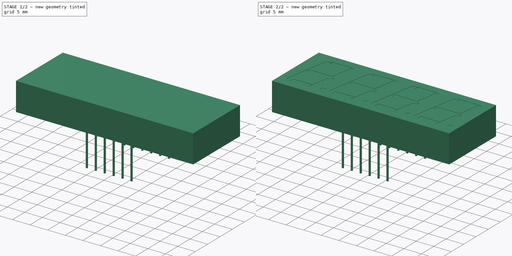
[diagram: build sequence overview — one tinted view per stage of 2, left to right]
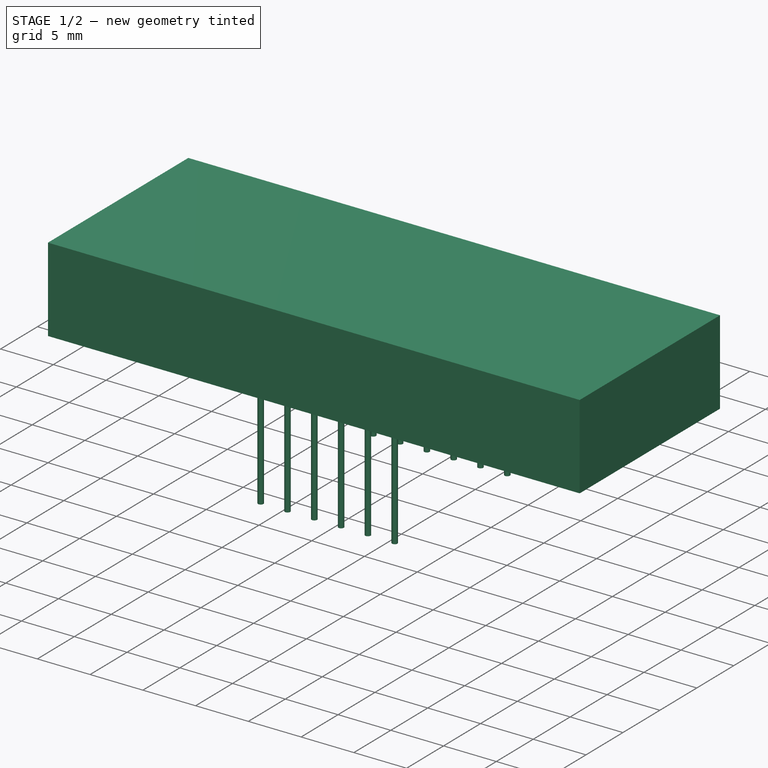
[diagram: stage 1 of 2 — iso view after this stage's code; geometry added in this stage tinted green]
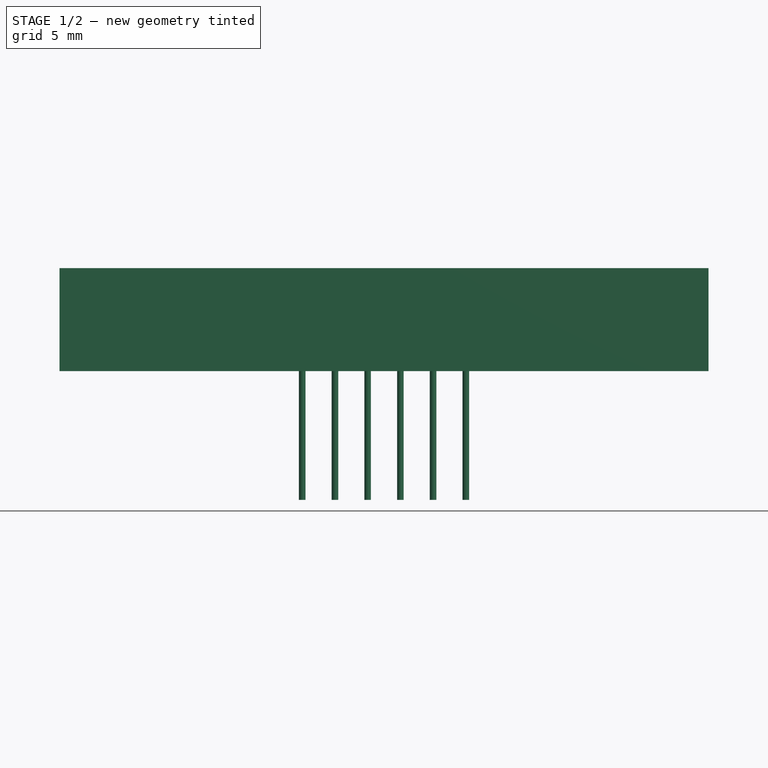
[diagram: stage 1 of 2 — front view after this stage's code; geometry added in this stage tinted green]
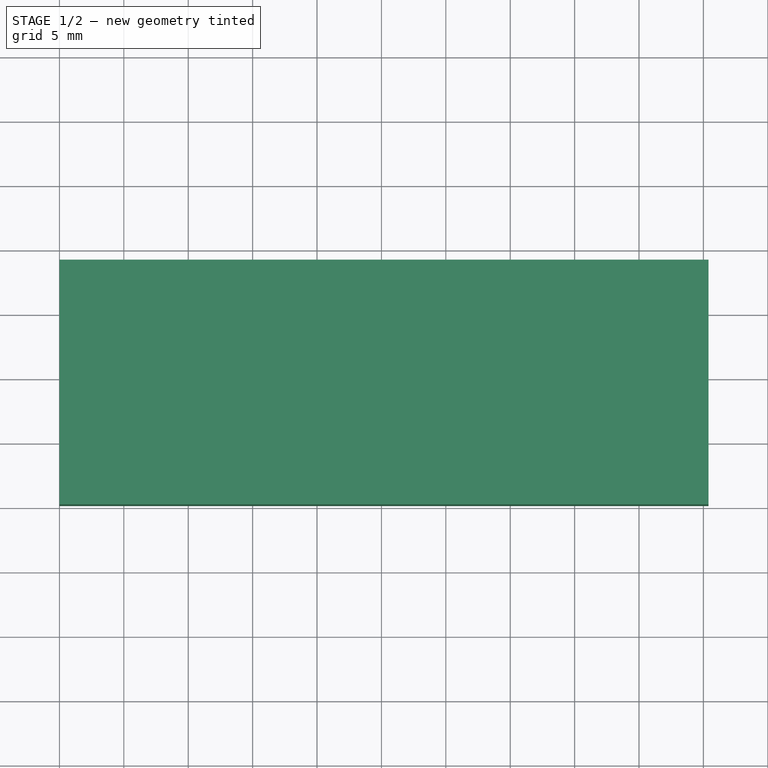
[diagram: stage 1 of 2 — top view after this stage's code; geometry added in this stage tinted green]
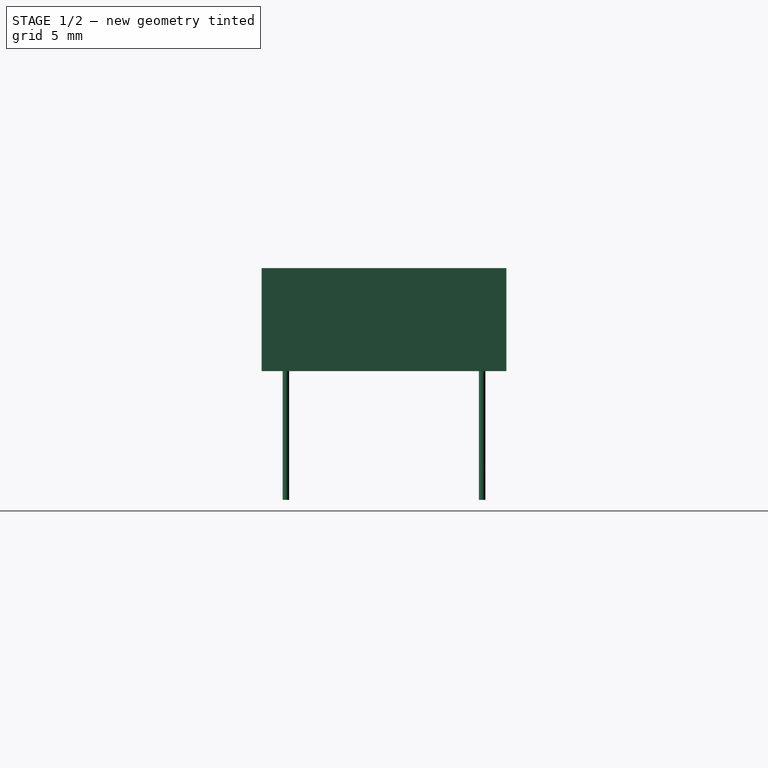
[diagram: stage 1 of 2 — right view after this stage's code; geometry added in this stage tinted green]
FCSTD DOCUMENT  (FreeCAD 0.19R24291 (Git))
Label: 4-digit-7segment-display
License: All rights reserved
LicenseURL: http://en.wikipedia.org/wiki/All_rights_reserved
objects: Sketcher::SketchObject×3, PartDesign::Pad×2, PartDesign::Pocket×1, PartDesign::Body×1, Part::Refine×1
note: 11 computed .brp shape members not serialized (recipe doc carries the construction recipe); baked Part::Feature solids carry a one-line shape summary decoded from their .brp

FEATURE [Sketcher::SketchObject] Sketch
  FullyConstrained = true
  MapMode = 5
  Support = -> [XY_Plane]
  sketch-geometry (4):
    g0: LineSegment StartX=0 StartY=0 StartZ=0 EndX=50.4 EndY=0 EndZ=0
    g1: LineSegment StartX=50.4 StartY=0 StartZ=0 EndX=50.4 EndY=19 EndZ=0
    g2: LineSegment StartX=50.4 StartY=19 StartZ=0 EndX=0 EndY=19 EndZ=0
    g3: LineSegment StartX=0 StartY=19 StartZ=0 EndX=0 EndY=0 EndZ=0
  constraints (11):
    c: Coincident(g0,g1)
    c: Coincident(g1,g2)
    c: Coincident(g2,g3)
    c: Coincident(g3,g0)
    c: Horizontal(g0)
    c: Horizontal(g2)
    c: Vertical(g1)
    c: Vertical(g3)
    c: Coincident(g0,g-1)
    c: DistanceY(g3,g3) = 19
    c: DistanceX(g0,g0) = 50.4
FEATURE [PartDesign::Pad] Pad
  Direction = (1,1,1)
  Length = 8
  Length2 = 100
  Profile = -> Sketch
  Type = 0
FEATURE [Sketcher::SketchObject] Sketch001
  ExternalGeometry = -> [Pad]
  FullyConstrained = true
  MapMode = 5
  Placement = pos=(0,0,0) rot=(1,0,0;3.14159rad)
  Support = -> [Pad]
  sketch-geometry (26):
    g0: Circle CenterX=18.85 CenterY=-1.88 CenterZ=0 NormalX=0 NormalY=0 NormalZ=1 AngleXU=0 Radius=0.255
    g1: Circle CenterX=21.39 CenterY=-1.88 CenterZ=0 NormalX=0 NormalY=0 NormalZ=1 AngleXU=0 Radius=0.255
    g2: LineSegment StartX=18.85 StartY=-1.88 StartZ=0 EndX=21.39 EndY=-1.88 EndZ=0
    g3: Circle CenterX=23.93 CenterY=-1.88 CenterZ=0 NormalX=0 NormalY=0 NormalZ=1 AngleXU=0 Radius=0.255
    g4: LineSegment StartX=21.39 StartY=-1.88 StartZ=0 EndX=23.93 EndY=-1.88 EndZ=0
    g5: Circle CenterX=26.47 CenterY=-1.88 CenterZ=0 NormalX=0 NormalY=0 NormalZ=1 AngleXU=0 Radius=0.255
    g6: LineSegment StartX=23.93 StartY=-1.88 StartZ=0 EndX=26.47 EndY=-1.88 EndZ=0
    g7: Circle CenterX=29.01 CenterY=-1.88 CenterZ=0 NormalX=0 NormalY=0 NormalZ=1 AngleXU=0 Radius=0.255
    g8: LineSegment StartX=26.47 StartY=-1.88 StartZ=0 EndX=29.01 EndY=-1.88 EndZ=0
    g9: Circle CenterX=31.55 CenterY=-1.88 CenterZ=0 NormalX=0 NormalY=0 NormalZ=1 AngleXU=0 Radius=0.255
    g10: LineSegment StartX=29.01 StartY=-1.88 StartZ=0 EndX=31.55 EndY=-1.88 EndZ=0
    g11: Circle CenterX=18.85 CenterY=-17.12 CenterZ=0 NormalX=0 NormalY=0 NormalZ=1 AngleXU=0 Radius=0.255
    g12: LineSegment StartX=18.85 StartY=-1.88 StartZ=0 EndX=18.85 EndY=-17.12 EndZ=0
    g13: Circle CenterX=21.39 CenterY=-17.12 CenterZ=0 NormalX=0 NormalY=0 NormalZ=1 AngleXU=0 Radius=0.255
    g14: LineSegment StartX=18.85 StartY=-17.12 StartZ=0 EndX=21.39 EndY=-17.12 EndZ=0
    g15: Circle CenterX=23.93 CenterY=-17.12 CenterZ=0 NormalX=0 NormalY=0 NormalZ=1 AngleXU=0 Radius=0.255
    g16: LineSegment StartX=21.39 StartY=-17.12 StartZ=0 EndX=23.93 EndY=-17.12 EndZ=0
    g17: Circle CenterX=26.47 CenterY=-17.12 CenterZ=0 NormalX=0 NormalY=0 NormalZ=1 AngleXU=0 Radius=0.255
    g18: LineSegment StartX=23.93 StartY=-17.12 StartZ=0 EndX=26.47 EndY=-17.12 EndZ=0
    g19: Circle CenterX=29.01 CenterY=-17.12 CenterZ=0 NormalX=0 NormalY=0 NormalZ=1 AngleXU=0 Radius=0.255
    g20: LineSegment StartX=26.47 StartY=-17.12 StartZ=0 EndX=29.01 EndY=-17.12 EndZ=0
    g21: Circle CenterX=31.55 CenterY=-17.12 CenterZ=0 NormalX=0 NormalY=0 NormalZ=1 AngleXU=0 Radius=0.255
    g22: LineSegment StartX=29.01 StartY=-17.12 StartZ=0 EndX=31.55 EndY=-17.12 EndZ=0
    g23: LineSegment StartX=18.85 StartY=-17.12 StartZ=0 EndX=31.55 EndY=-1.88 EndZ=0
    g24: GeomPoint X=25.2 Y=-9.5 Z=0
    g25: LineSegment StartX=0 StartY=0 StartZ=0 EndX=50.4 EndY=-19 EndZ=0
  constraints (62):
    c: Coincident(g0,g2)
    c: Coincident(g1,g2)
    c: Distance(g2) = 2.54
    c: Coincident(g1,g4)
    c: Coincident(g3,g4)
    c: Equal(g2,g4)
    c: Parallel(g4,g2)
    c: Coincident(g3,g6)
    c: Coincident(g5,g6)
    c: Equal(g2,g6)
    c: Parallel(g6,g2)
    c: Coincident(g5,g8)
    c: Coincident(g7,g8)
    c: Equal(g2,g8)
    c: Parallel(g8,g2)
    c: Coincident(g7,g10)
    c: Coincident(g9,g10)
    c: Equal(g2,g10)
    c: Parallel(g10,g2)
    c: Coincident(g0,g12)
    c: Coincident(g11,g12)
    c: Perpendicular(g12,g2)
    c: Coincident(g11,g14)
    c: Coincident(g13,g14)
    c: Equal(g2,g14)
    c: Parallel(g14,g2)
    c: Coincident(g13,g16)
    c: Coincident(g15,g16)
    c: Equal(g2,g16)
    c: Parallel(g16,g2)
    c: Coincident(g15,g18)
    c: Coincident(g17,g18)
    c: Equal(g2,g18)
    c: Parallel(g18,g2)
    c: Coincident(g17,g20)
    c: Coincident(g19,g20)
    c: Equal(g2,g20)
    c: Parallel(g20,g2)
    c: Coincident(g19,g22)
    c: Coincident(g21,g22)
    c: Equal(g2,g22)
    c: Parallel(g22,g2)
    c: Horizontal(g22)
    c: Coincident(g23,g11)
    c: Coincident(g23,g9)
    c: Symmetric(g23,g23,g24)
    c: Coincident(g25,g-1)
    c: Coincident(g25,g-3)
    c: Symmetric(g25,g25,g24)
    c: DistanceY(g12,g12) = 15.24
    c: Equal(g21,g19)
    c: Equal(g19,g17)
    c: Equal(g17,g15)
    c: Equal(g15,g13)
    c: Equal(g13,g11)
    c: Equal(g11,g9)
    c: Equal(g9,g7)
    c: Equal(g7,g5)
    c: Equal(g5,g3)
    c: Equal(g3,g1)
    c: Equal(g1,g0)
    c: Diameter(g21) = 0.51
FEATURE [PartDesign::Pad] Pad001
  BaseFeature = -> Pad
  Direction = (1,1,1)
  Length = 10
  Length2 = 100
  Profile = -> Sketch001
  Type = 0
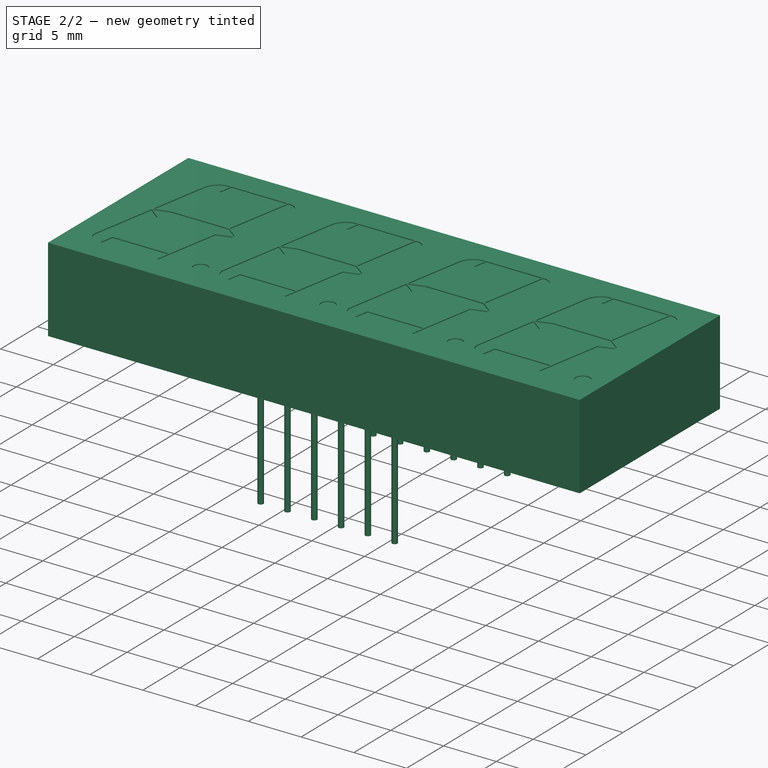
[diagram: stage 2 of 2 — iso view after this stage's code; geometry added in this stage tinted green]
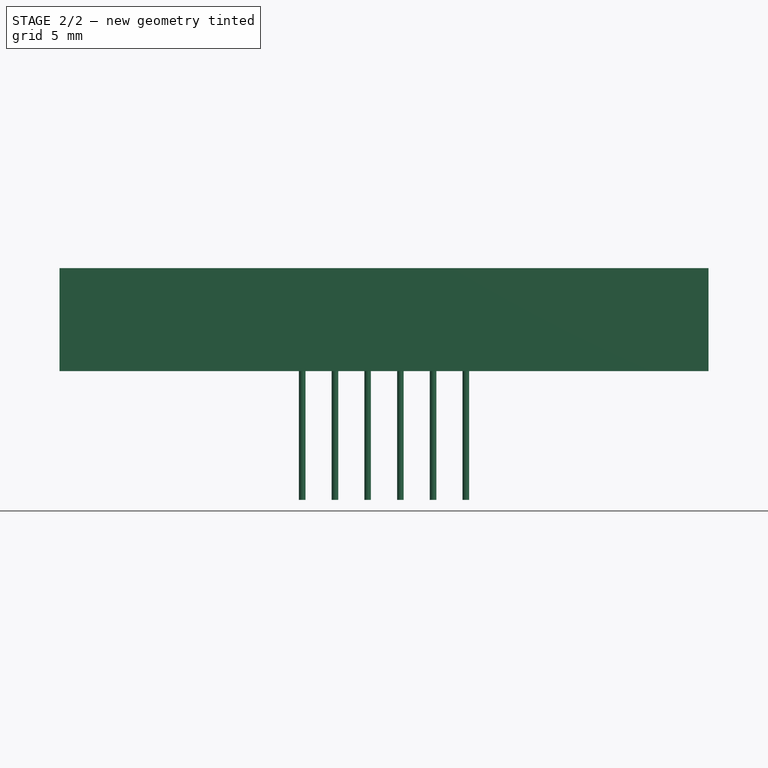
[diagram: stage 2 of 2 — front view after this stage's code; geometry added in this stage tinted green]
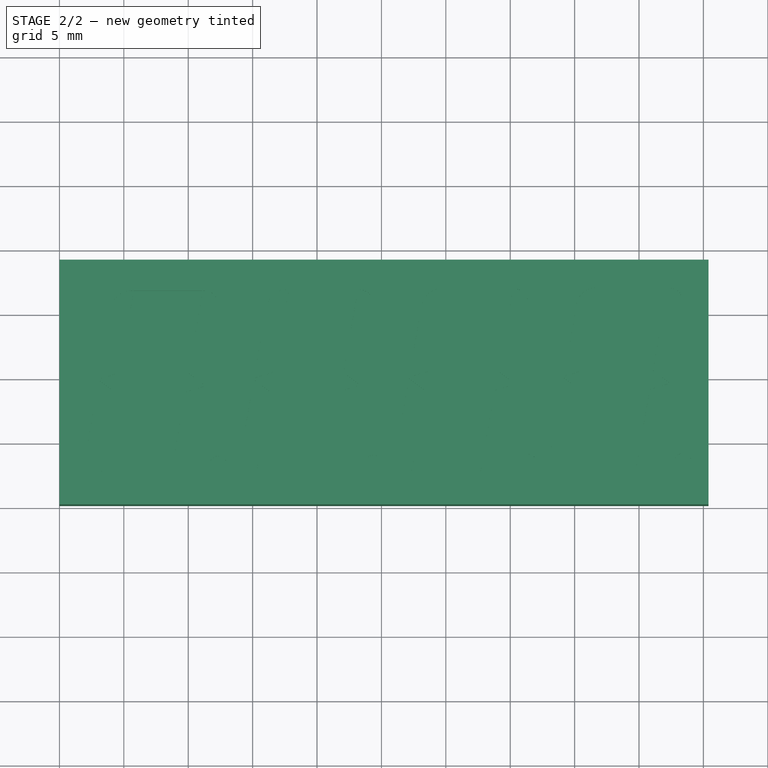
[diagram: stage 2 of 2 — top view after this stage's code; geometry added in this stage tinted green]
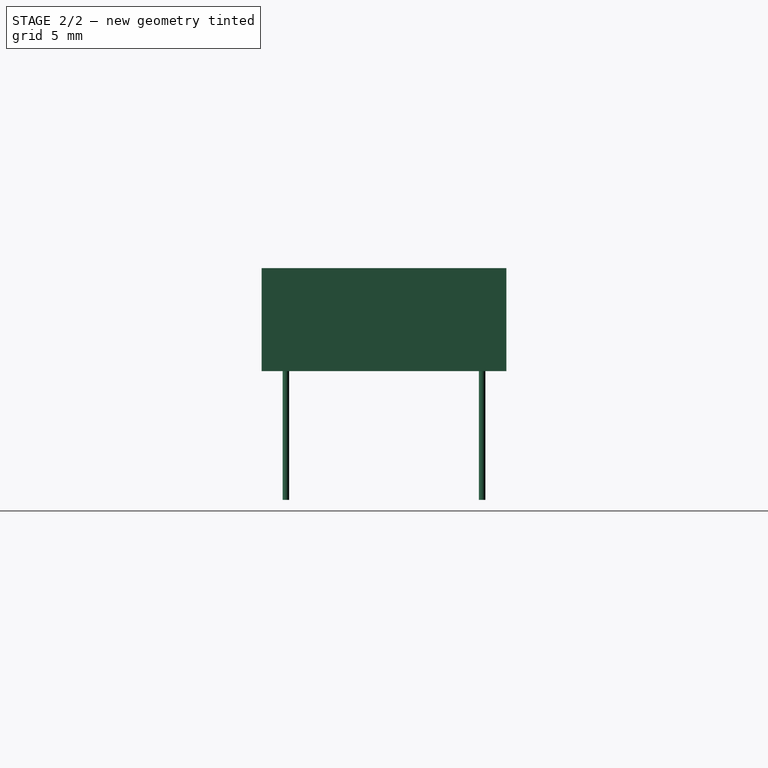
[diagram: stage 2 of 2 — right view after this stage's code; geometry added in this stage tinted green]
FEATURE [Sketcher::SketchObject] Sketch002
  ExternalGeometry = -> [Pad001]
  FullyConstrained = true
  MapMode = 5
  Placement = pos=(0,0,8) rot=(0,0,1;0rad)
  Support = -> [Pad001]
  expr: Constraints[248] = 12.7 - 1.35 / 2
  expr: Constraints[112] = (19 - 14.2) / 2
  sketch-geometry (190):
    g0: LineSegment StartX=3.11113 StartY=9.84487 StartZ=0 EndX=4.55965 EndY=10.2854 EndZ=0
    g1: LineSegment StartX=4.55965 StartY=10.2854 StartZ=0 EndX=5.67307 EndY=16.6 EndZ=0
    g2: LineSegment StartX=5.67307 StartY=16.6 StartZ=0 EndX=5.57307 EndY=16.6 EndZ=0
    g3: LineSegment StartX=4.08157 StartY=15.3485 StartZ=0 EndX=3.11113 EndY=9.84487 EndZ=0
    g4: LineSegment StartX=5.77461 StartY=16.6 StartZ=0 EndX=5.53657 EndY=15.25 EndZ=0
    g5: LineSegment StartX=5.53657 StartY=15.25 StartZ=0 EndX=10.8168 EndY=15.25 EndZ=0
    g6: LineSegment StartX=10.8168 StartY=15.25 StartZ=0 EndX=11.0548 EndY=16.6 EndZ=0
    g7: LineSegment StartX=11.0548 StartY=16.6 StartZ=0 EndX=5.77461 EndY=16.6 EndZ=0
    g8: LineSegment StartX=11.1564 StartY=16.6 StartZ=0 EndX=11.2564 EndY=16.6 EndZ=0
    g9: LineSegment StartX=12.3065 StartY=15.3485 StartZ=0 EndX=11.2534 EndY=9.37602 EndZ=0
    g10: LineSegment StartX=11.2534 StartY=9.37602 StartZ=0 EndX=10.0429 EndY=10.2854 EndZ=0
    g11: LineSegment StartX=10.0429 StartY=10.2854 StartZ=0 EndX=11.1564 EndY=16.6 EndZ=0
    g12: LineSegment StartX=3.09166 StartY=9.73443 StartZ=0 EndX=4.54017 EndY=10.175 EndZ=0
    g13: LineSegment StartX=4.54017 StartY=10.175 StartZ=0 EndX=10.0235 EndY=10.175 EndZ=0
    g14: LineSegment StartX=10.0235 StartY=10.175 StartZ=0 EndX=11.2339 EndY=9.26557 EndZ=0
    g15: LineSegment StartX=11.2339 StartY=9.26557 StartZ=0 EndX=9.78543 EndY=8.825 EndZ=0
    g16: LineSegment StartX=9.78543 StartY=8.825 StartZ=0 EndX=4.30213 EndY=8.825 EndZ=0
    g17: LineSegment StartX=4.30213 StartY=8.825 StartZ=0 EndX=3.09166 EndY=9.73443 EndZ=0
    g18: LineSegment StartX=3.07218 StartY=9.62398 StartZ=0 EndX=4.28265 EndY=8.71455 EndZ=0
    g19: LineSegment StartX=4.28265 StartY=8.71455 StartZ=0 EndX=3.16923 EndY=2.4 EndZ=0
    g20: LineSegment StartX=3.16923 StartY=2.4 StartZ=0 EndX=3.06923 EndY=2.4 EndZ=0
    g21: LineSegment StartX=2.01908 StartY=3.65152 StartZ=0 EndX=3.07218 EndY=9.62398 EndZ=0
    g22: LineSegment StartX=11.2145 StartY=9.15513 StartZ=0 EndX=9.76596 EndY=8.71455 EndZ=0
    g23: LineSegment StartX=9.76596 StartY=8.71455 StartZ=0 EndX=8.65253 EndY=2.4 EndZ=0
    g24: LineSegment StartX=8.65253 StartY=2.4 StartZ=0 EndX=8.75253 EndY=2.4 EndZ=0
    g25: LineSegment StartX=10.244 StartY=3.65152 StartZ=0 EndX=11.2145 EndY=9.15513 EndZ=0
    g26: LineSegment StartX=3.27077 StartY=2.4 StartZ=0 EndX=8.55099 EndY=2.4 EndZ=0
    g27: LineSegment StartX=8.55099 StartY=2.4 StartZ=0 EndX=8.78903 EndY=3.75 EndZ=0
    g28: LineSegment StartX=8.78903 StartY=3.75 StartZ=0 EndX=3.50881 EndY=3.75 EndZ=0
    g29: LineSegment StartX=3.50881 StartY=3.75 StartZ=0 EndX=3.27077 EndY=2.4 EndZ=0
    g30: ArcOfCircle CenterX=5.57307 CenterY=15.0855 CenterZ=0 NormalX=0 NormalY=0 NormalZ=1 AngleXU=0 Radius=1.51451 StartAngle=1.5708 EndAngle=2.96706
    g31: ArcOfCircle CenterX=11.2564 CenterY=15.5337 CenterZ=0 NormalX=0 NormalY=0 NormalZ=1 AngleXU=0 Radius=1.06635 StartAngle=6.10865 EndAngle=7.85398
    g32: ArcOfCircle CenterX=3.06923 CenterY=3.46635 CenterZ=0 NormalX=0 NormalY=0 NormalZ=1 AngleXU=0 Radius=1.06635 StartAngle=2.96706 EndAngle=4.71239
    g33: ArcOfCircle CenterX=8.75253 CenterY=3.91451 CenterZ=0 NormalX=0 NormalY=0 NormalZ=1 AngleXU=0 Radius=1.51451 StartAngle=4.71239 EndAngle=6.10865
    g34: Circle CenterX=12.3227 CenterY=3.075 CenterZ=0 NormalX=0 NormalY=0 NormalZ=1 AngleXU=0 Radius=0.675
    g35: LineSegment StartX=11.2534 StartY=9.37602 StartZ=0 EndX=11.2145 EndY=9.15513 EndZ=0
    g36: LineSegment StartX=3.11113 StartY=9.84487 StartZ=0 EndX=3.07218 EndY=9.62398 EndZ=0
    g37: LineSegment StartX=8.55099 StartY=2.4 StartZ=0 EndX=8.65253 EndY=2.4 EndZ=0
    g38: LineSegment StartX=3.16923 StartY=2.4 StartZ=0 EndX=3.27077 EndY=2.4 EndZ=0
    g39: LineSegment StartX=4.28265 StartY=8.71455 StartZ=0 EndX=4.30213 EndY=8.825 EndZ=0
    g40: LineSegment StartX=10.0429 StartY=10.2854 StartZ=0 EndX=10.0235 EndY=10.175 EndZ=0
    g41: LineSegment StartX=9.76596 StartY=8.71455 StartZ=0 EndX=9.78543 EndY=8.825 EndZ=0
    g42: LineSegment StartX=4.54017 StartY=10.175 StartZ=0 EndX=4.55965 EndY=10.2854 EndZ=0
    g43: LineSegment StartX=8.55099 StartY=3.75 StartZ=0 EndX=8.55099 EndY=2.4 EndZ=0
    g44: LineSegment StartX=8.55099 StartY=3.075 StartZ=0 EndX=12.3227 EndY=3.075 EndZ=0
    g45: LineSegment StartX=12.3227 StartY=3.075 StartZ=0 EndX=12.3227 EndY=15.5337 EndZ=0
    g46: LineSegment StartX=15.1359 StartY=9.91443 StartZ=0 EndX=16.5844 EndY=10.355 EndZ=0
    g47: LineSegment StartX=16.5844 StartY=10.355 StartZ=0 EndX=17.6979 EndY=16.6696 EndZ=0
    g48: LineSegment StartX=17.6979 StartY=16.6696 StartZ=0 EndX=17.5979 EndY=16.6696 EndZ=0
    g49: LineSegment StartX=16.1064 StartY=15.418 StartZ=0 EndX=15.1359 EndY=9.91443 EndZ=0
    g50: LineSegment StartX=17.7994 StartY=16.6696 StartZ=0 EndX=17.5614 EndY=15.3196 EndZ=0
    g51: LineSegment StartX=17.5614 StartY=15.3196 StartZ=0 EndX=22.8416 EndY=15.3196 EndZ=0
    g52: LineSegment StartX=22.8416 StartY=15.3196 StartZ=0 EndX=23.0796 EndY=16.6696 EndZ=0
    g53: LineSegment StartX=23.0796 StartY=16.6696 StartZ=0 EndX=17.7994 EndY=16.6696 EndZ=0
    g54: LineSegment StartX=23.1812 StartY=16.6696 StartZ=0 EndX=23.2812 EndY=16.6696 EndZ=0
    g55: LineSegment StartX=24.3313 StartY=15.418 StartZ=0 EndX=23.2782 EndY=9.44558 EndZ=0
    g56: LineSegment StartX=23.2782 StartY=9.44558 StartZ=0 EndX=22.0677 EndY=10.355 EndZ=0
    g57: LineSegment StartX=22.0677 StartY=10.355 StartZ=0 EndX=23.1812 EndY=16.6696 EndZ=0
    g58: LineSegment StartX=15.1165 StartY=9.80398 StartZ=0 EndX=16.565 EndY=10.2446 EndZ=0
    g59: LineSegment StartX=16.565 StartY=10.2446 StartZ=0 EndX=22.0483 EndY=10.2446 EndZ=0
    g60: LineSegment StartX=22.0483 StartY=10.2446 StartZ=0 EndX=23.2587 EndY=9.33513 EndZ=0
    g61: LineSegment StartX=23.2587 StartY=9.33513 StartZ=0 EndX=21.8102 EndY=8.89456 EndZ=0
    g62: LineSegment StartX=21.8102 StartY=8.89456 StartZ=0 EndX=16.3269 EndY=8.89456 EndZ=0
    g63: LineSegment StartX=16.3269 StartY=8.89456 StartZ=0 EndX=15.1165 EndY=9.80398 EndZ=0
    g64: LineSegment StartX=15.097 StartY=9.69354 StartZ=0 EndX=16.3075 EndY=8.78411 EndZ=0
    g65: LineSegment StartX=16.3075 StartY=8.78411 StartZ=0 EndX=15.194 EndY=2.46956 EndZ=0
    g66: LineSegment StartX=15.194 StartY=2.46956 StartZ=0 EndX=15.094 EndY=2.46956 EndZ=0
    g67: LineSegment StartX=14.0439 StartY=3.72108 StartZ=0 EndX=15.097 EndY=9.69354 EndZ=0
    g68: LineSegment StartX=23.2393 StartY=9.22469 StartZ=0 EndX=21.7908 EndY=8.78411 EndZ=0
    g69: LineSegment StartX=21.7908 StartY=8.78411 StartZ=0 EndX=20.6773 EndY=2.46956 EndZ=0
    g70: LineSegment StartX=20.6773 StartY=2.46956 StartZ=0 EndX=20.7773 EndY=2.46956 EndZ=0
    g71: LineSegment StartX=22.2688 StartY=3.72108 StartZ=0 EndX=23.2393 EndY=9.22469 EndZ=0
    g72: LineSegment StartX=15.2956 StartY=2.46956 StartZ=0 EndX=20.5758 EndY=2.46956 EndZ=0
    g73: LineSegment StartX=20.5758 StartY=2.46956 StartZ=0 EndX=20.8138 EndY=3.81956 EndZ=0
    g74: LineSegment StartX=20.8138 StartY=3.81956 StartZ=0 EndX=15.5336 EndY=3.81956 EndZ=0
    g75: LineSegment StartX=15.5336 StartY=3.81956 StartZ=0 EndX=15.2956 EndY=2.46956 EndZ=0
    g76: ArcOfCircle CenterX=17.5979 CenterY=15.155 CenterZ=0 NormalX=0 NormalY=0 NormalZ=1 AngleXU=0 Radius=1.51451 StartAngle=1.5708 EndAngle=2.96706
    g77: ArcOfCircle CenterX=23.2812 CenterY=15.6032 CenterZ=0 NormalX=0 NormalY=0 NormalZ=1 AngleXU=0 Radius=1.06635 StartAngle=6.10865 EndAngle=7.85398
    g78: ArcOfCircle CenterX=15.094 CenterY=3.53591 CenterZ=0 NormalX=0 NormalY=0 NormalZ=1 AngleXU=0 Radius=1.06635 StartAngle=2.96706 EndAngle=4.71239
    g79: ArcOfCircle CenterX=20.7773 CenterY=3.98407 CenterZ=0 NormalX=0 NormalY=0 NormalZ=1 AngleXU=0 Radius=1.51451 StartAngle=4.71239 EndAngle=6.10865
    g80: Circle CenterX=24.3475 CenterY=3.14456 CenterZ=0 NormalX=0 NormalY=0 NormalZ=1 AngleXU=0 Radius=0.675
    g81: LineSegment StartX=23.2782 StartY=9.44558 StartZ=0 EndX=23.2393 EndY=9.22469 EndZ=0
    g82: LineSegment StartX=15.1359 StartY=9.91443 StartZ=0 EndX=15.097 EndY=9.69354 EndZ=0
    g83: LineSegment StartX=20.5758 StartY=2.46956 StartZ=0 EndX=20.6773 EndY=2.46956 EndZ=0
    g84: LineSegment StartX=15.194 StartY=2.46956 StartZ=0 EndX=15.2956 EndY=2.46956 EndZ=0
    g85: LineSegment StartX=16.3075 StartY=8.78411 StartZ=0 EndX=16.3269 EndY=8.89456 EndZ=0
    g86: LineSegment StartX=22.0677 StartY=10.355 StartZ=0 EndX=22.0483 EndY=10.2446 EndZ=0
    g87: LineSegment StartX=21.7908 StartY=8.78411 StartZ=0 EndX=21.8102 EndY=8.89456 EndZ=0
    g88: LineSegment StartX=16.565 StartY=10.2446 StartZ=0 EndX=16.5844 EndY=10.355 EndZ=0
    g89: LineSegment StartX=20.5758 StartY=3.81956 StartZ=0 EndX=20.5758 EndY=2.46956 EndZ=0
    g90: LineSegment StartX=20.5758 StartY=3.14456 StartZ=0 EndX=24.3475 EndY=3.14456 EndZ=0
    g91: LineSegment StartX=24.3475 StartY=3.14456 StartZ=0 EndX=24.3475 EndY=15.6032 EndZ=0
    g92: LineSegment StartX=3.11113 StartY=9.84487 StartZ=0 EndX=15.1359 EndY=9.91443 EndZ=0
    g93: LineSegment StartX=27.1607 StartY=9.98399 StartZ=0 EndX=28.6092 EndY=10.4246 EndZ=0
    g94: LineSegment StartX=28.6092 StartY=10.4246 StartZ=0 EndX=29.7227 EndY=16.7391 EndZ=0
    g95: LineSegment StartX=29.7227 StartY=16.7391 StartZ=0 EndX=29.6227 EndY=16.7391 EndZ=0
    g96: LineSegment StartX=28.1312 StartY=15.4876 StartZ=0 EndX=27.1607 EndY=9.98399 EndZ=0
    g97: LineSegment StartX=29.8242 StartY=16.7391 StartZ=0 EndX=29.5862 EndY=15.3891 EndZ=0
    g98: LineSegment StartX=29.5862 StartY=15.3891 StartZ=0 EndX=34.8664 EndY=15.3891 EndZ=0
    g99: LineSegment StartX=34.8664 StartY=15.3891 StartZ=0 EndX=35.1044 EndY=16.7391 EndZ=0
    g100: LineSegment StartX=35.1044 StartY=16.7391 StartZ=0 EndX=29.8242 EndY=16.7391 EndZ=0
    g101: LineSegment StartX=35.206 StartY=16.7391 StartZ=0 EndX=35.306 EndY=16.7391 EndZ=0
    g102: LineSegment StartX=36.3561 StartY=15.4876 StartZ=0 EndX=35.303 EndY=9.51514 EndZ=0
    g103: LineSegment StartX=35.303 StartY=9.51514 StartZ=0 EndX=34.0925 EndY=10.4246 EndZ=0
    g104: LineSegment StartX=34.0925 StartY=10.4246 StartZ=0 EndX=35.206 EndY=16.7391 EndZ=0
    g105: LineSegment StartX=27.1413 StartY=9.87354 StartZ=0 EndX=28.5898 EndY=10.3141 EndZ=0
    g106: LineSegment StartX=28.5898 StartY=10.3141 StartZ=0 EndX=34.0731 EndY=10.3141 EndZ=0
    g107: LineSegment StartX=34.0731 StartY=10.3141 StartZ=0 EndX=35.2835 EndY=9.40469 EndZ=0
    g108: LineSegment StartX=35.2835 StartY=9.40469 StartZ=0 EndX=33.835 EndY=8.96412 EndZ=0
    g109: LineSegment StartX=33.835 StartY=8.96412 StartZ=0 EndX=28.3517 EndY=8.96412 EndZ=0
    g110: LineSegment StartX=28.3517 StartY=8.96412 StartZ=0 EndX=27.1413 EndY=9.87354 EndZ=0
    g111: LineSegment StartX=27.1218 StartY=9.7631 StartZ=0 EndX=28.3323 EndY=8.85367 EndZ=0
    g112: LineSegment StartX=28.3323 StartY=8.85367 StartZ=0 EndX=27.2188 EndY=2.53912 EndZ=0
    g113: LineSegment StartX=27.2188 StartY=2.53912 StartZ=0 EndX=27.1188 EndY=2.53912 EndZ=0
    g114: LineSegment StartX=26.0687 StartY=3.79064 StartZ=0 EndX=27.1218 EndY=9.7631 EndZ=0
    g115: LineSegment StartX=35.2641 StartY=9.29425 StartZ=0 EndX=33.8156 EndY=8.85367 EndZ=0
    g116: LineSegment StartX=33.8156 StartY=8.85367 StartZ=0 EndX=32.7021 EndY=2.53912 EndZ=0
    g117: LineSegment StartX=32.7021 StartY=2.53912 StartZ=0 EndX=32.8021 EndY=2.53912 EndZ=0
    g118: LineSegment StartX=34.2936 StartY=3.79064 StartZ=0 EndX=35.2641 EndY=9.29425 EndZ=0
    g119: LineSegment StartX=27.3204 StartY=2.53912 StartZ=0 EndX=32.6006 EndY=2.53912 EndZ=0
    g120: LineSegment StartX=32.6006 StartY=2.53912 StartZ=0 EndX=32.8386 EndY=3.88912 EndZ=0
    g121: LineSegment StartX=32.8386 StartY=3.88912 StartZ=0 EndX=27.5584 EndY=3.88912 EndZ=0
    g122: LineSegment StartX=27.5584 StartY=3.88912 StartZ=0 EndX=27.3204 EndY=2.53912 EndZ=0
    g123: ArcOfCircle CenterX=29.6227 CenterY=15.2246 CenterZ=0 NormalX=0 NormalY=0 NormalZ=1 AngleXU=0 Radius=1.51451 StartAngle=1.5708 EndAngle=2.96706
    g124: ArcOfCircle CenterX=35.306 CenterY=15.6728 CenterZ=0 NormalX=0 NormalY=0 NormalZ=1 AngleXU=0 Radius=1.06635 StartAngle=6.10865 EndAngle=7.85398
    g125: ArcOfCircle CenterX=27.1188 CenterY=3.60547 CenterZ=0 NormalX=0 NormalY=0 NormalZ=1 AngleXU=0 Radius=1.06635 StartAngle=2.96706 EndAngle=4.71239
    g126: ArcOfCircle CenterX=32.8021 CenterY=4.05363 CenterZ=0 NormalX=0 NormalY=0 NormalZ=1 AngleXU=0 Radius=1.51451 StartAngle=4.71239 EndAngle=6.10865
    g127: Circle CenterX=36.3723 CenterY=3.21412 CenterZ=0 NormalX=0 NormalY=0 NormalZ=1 AngleXU=0 Radius=0.675
    g128: LineSegment StartX=35.303 StartY=9.51514 StartZ=0 EndX=35.2641 EndY=9.29425 EndZ=0
    g129: LineSegment StartX=27.1607 StartY=9.98399 StartZ=0 EndX=27.1218 EndY=9.7631 EndZ=0
    g130: LineSegment StartX=32.6006 StartY=2.53912 StartZ=0 EndX=32.7021 EndY=2.53912 EndZ=0
    g131: LineSegment StartX=27.2188 StartY=2.53912 StartZ=0 EndX=27.3204 EndY=2.53912 EndZ=0
    g132: LineSegment StartX=28.3323 StartY=8.85367 StartZ=0 EndX=28.3517 EndY=8.96412 EndZ=0
    g133: LineSegment StartX=34.0925 StartY=10.4246 StartZ=0 EndX=34.0731 EndY=10.3141 EndZ=0
    g134: LineSegment StartX=33.8156 StartY=8.85367 StartZ=0 EndX=33.835 EndY=8.96412 EndZ=0
    g135: LineSegment StartX=28.5898 StartY=10.3141 StartZ=0 EndX=28.6092 EndY=10.4246 EndZ=0
    g136: LineSegment StartX=32.6006 StartY=3.88912 StartZ=0 EndX=32.6006 EndY=2.53912 EndZ=0
    g137: LineSegment StartX=32.6006 StartY=3.21412 StartZ=0 EndX=36.3723 EndY=3.21412 EndZ=0
    g138: LineSegment StartX=36.3723 StartY=3.21412 StartZ=0 EndX=36.3723 EndY=15.6728 EndZ=0
    g139: LineSegment StartX=15.1359 StartY=9.91443 StartZ=0 EndX=27.1607 EndY=9.98399 EndZ=0
    g140: LineSegment StartX=39.1855 StartY=10.0536 StartZ=0 EndX=40.634 EndY=10.4941 EndZ=0
    g141: LineSegment StartX=40.634 StartY=10.4941 StartZ=0 EndX=41.7475 EndY=16.8087 EndZ=0
    g142: LineSegment StartX=41.7475 StartY=16.8087 StartZ=0 EndX=41.6475 EndY=16.8087 EndZ=0
    g143: LineSegment StartX=40.156 StartY=15.5572 StartZ=0 EndX=39.1855 EndY=10.0536 EndZ=0
    g144: LineSegment StartX=41.849 StartY=16.8087 StartZ=0 EndX=41.611 EndY=15.4587 EndZ=0
    g145: LineSegment StartX=41.611 StartY=15.4587 StartZ=0 EndX=46.8912 EndY=15.4587 EndZ=0
    g146: LineSegment StartX=46.8912 StartY=15.4587 StartZ=0 EndX=47.1292 EndY=16.8087 EndZ=0
    g147: LineSegment StartX=47.1292 StartY=16.8087 StartZ=0 EndX=41.849 EndY=16.8087 EndZ=0
    g148: LineSegment StartX=47.2308 StartY=16.8087 StartZ=0 EndX=47.3308 EndY=16.8087 EndZ=0
    g149: LineSegment StartX=48.3809 StartY=15.5572 StartZ=0 EndX=47.3278 EndY=9.5847 EndZ=0
    g150: LineSegment StartX=47.3278 StartY=9.5847 StartZ=0 EndX=46.1173 EndY=10.4941 EndZ=0
    g151: LineSegment StartX=46.1173 StartY=10.4941 StartZ=0 EndX=47.2308 EndY=16.8087 EndZ=0
    g152: LineSegment StartX=39.1661 StartY=9.9431 StartZ=0 EndX=40.6146 EndY=10.3837 EndZ=0
    g153: LineSegment StartX=40.6146 StartY=10.3837 StartZ=0 EndX=46.0979 EndY=10.3837 EndZ=0
    g154: LineSegment StartX=46.0979 StartY=10.3837 StartZ=0 EndX=47.3083 EndY=9.47425 EndZ=0
    g155: LineSegment StartX=47.3083 StartY=9.47425 StartZ=0 EndX=45.8598 EndY=9.03368 EndZ=0
    g156: LineSegment StartX=45.8598 StartY=9.03368 StartZ=0 EndX=40.3765 EndY=9.03368 EndZ=0
    g157: LineSegment StartX=40.3765 StartY=9.03368 StartZ=0 EndX=39.1661 EndY=9.9431 EndZ=0
    g158: LineSegment StartX=39.1466 StartY=9.83266 StartZ=0 EndX=40.3571 EndY=8.92323 EndZ=0
    g159: LineSegment StartX=40.3571 StartY=8.92323 StartZ=0 EndX=39.2436 EndY=2.60868 EndZ=0
    g160: LineSegment StartX=39.2436 StartY=2.60868 StartZ=0 EndX=39.1436 EndY=2.60868 EndZ=0
    g161: LineSegment StartX=38.0935 StartY=3.8602 StartZ=0 EndX=39.1466 EndY=9.83266 EndZ=0
    g162: LineSegment StartX=47.2889 StartY=9.36381 StartZ=0 EndX=45.8404 EndY=8.92323 EndZ=0
    g163: LineSegment StartX=45.8404 StartY=8.92323 StartZ=0 EndX=44.7269 EndY=2.60868 EndZ=0
    g164: LineSegment StartX=44.7269 StartY=2.60868 StartZ=0 EndX=44.8269 EndY=2.60868 EndZ=0
    g165: LineSegment StartX=46.3184 StartY=3.8602 StartZ=0 EndX=47.2889 EndY=9.36381 EndZ=0
    g166: LineSegment StartX=39.3452 StartY=2.60868 StartZ=0 EndX=44.6254 EndY=2.60868 EndZ=0
    g167: LineSegment StartX=44.6254 StartY=2.60868 StartZ=0 EndX=44.8634 EndY=3.95868 EndZ=0
    g168: LineSegment StartX=44.8634 StartY=3.95868 StartZ=0 EndX=39.5832 EndY=3.95868 EndZ=0
    g169: LineSegment StartX=39.5832 StartY=3.95868 StartZ=0 EndX=39.3452 EndY=2.60868 EndZ=0
    g170: ArcOfCircle CenterX=41.6475 CenterY=15.2942 CenterZ=0 NormalX=0 NormalY=0 NormalZ=1 AngleXU=0 Radius=1.51451 StartAngle=1.5708 EndAngle=2.96706
    g171: ArcOfCircle CenterX=47.3308 CenterY=15.7423 CenterZ=0 NormalX=0 NormalY=0 NormalZ=1 AngleXU=0 Radius=1.06635 StartAngle=6.10865 EndAngle=7.85398
    g172: ArcOfCircle CenterX=39.1436 CenterY=3.67503 CenterZ=0 NormalX=0 NormalY=0 NormalZ=1 AngleXU=0 Radius=1.06635 StartAngle=2.96706 EndAngle=4.71239
    g173: ArcOfCircle CenterX=44.8269 CenterY=4.12319 CenterZ=0 NormalX=0 NormalY=0 NormalZ=1 AngleXU=0 Radius=1.51451 StartAngle=4.71239 EndAngle=6.10865
    g174: Circle CenterX=48.3971 CenterY=3.28368 CenterZ=0 NormalX=0 NormalY=0 NormalZ=1 AngleXU=0 Radius=0.675
    g175: LineSegment StartX=47.3278 StartY=9.5847 StartZ=0 EndX=47.2889 EndY=9.36381 EndZ=0
    g176: LineSegment StartX=39.1855 StartY=10.0536 StartZ=0 EndX=39.1466 EndY=9.83266 EndZ=0
    g177: LineSegment StartX=44.6254 StartY=2.60868 StartZ=0 EndX=44.7269 EndY=2.60868 EndZ=0
    g178: LineSegment StartX=39.2436 StartY=2.60868 StartZ=0 EndX=39.3452 EndY=2.60868 EndZ=0
    g179: LineSegment StartX=40.3571 StartY=8.92323 StartZ=0 EndX=40.3765 EndY=9.03368 EndZ=0
    g180: LineSegment StartX=46.1173 StartY=10.4941 StartZ=0 EndX=46.0979 EndY=10.3837 EndZ=0
    g181: LineSegment StartX=45.8404 StartY=8.92323 StartZ=0 EndX=45.8598 EndY=9.03368 EndZ=0
    g182: LineSegment StartX=40.6146 StartY=10.3837 StartZ=0 EndX=40.634 EndY=10.4941 EndZ=0
    g183: LineSegment StartX=44.6254 StartY=3.95868 StartZ=0 EndX=44.6254 EndY=2.60868 EndZ=0
    g184: LineSegment StartX=44.6254 StartY=3.28368 StartZ=0 EndX=48.3971 EndY=3.28368 EndZ=0
    g185: LineSegment StartX=48.3971 StartY=3.28368 StartZ=0 EndX=48.3971 EndY=15.7423 EndZ=0
    g186: LineSegment StartX=27.1607 StartY=9.98399 StartZ=0 EndX=39.1855 EndY=10.0536 EndZ=0
    g187: LineSegment StartX=48.3971 StartY=15.7423 StartZ=0 EndX=50.4 EndY=15.7423 EndZ=0
    g188: LineSegment StartX=2.00288 StartY=3.46634 StartZ=0 EndX=0 EndY=3.46634 EndZ=0
    g189: LineSegment StartX=2.00288 StartY=3.46634 StartZ=0 EndX=2.00288 EndY=0 EndZ=0
  constraints (516):
    c: Coincident(g0,g1)
    c: Coincident(g1,g2)
    c: Horizontal(g2)
    c: Coincident(g3,g0)
    c: Coincident(g4,g5)
    c: Horizontal(g5)
    c: Coincident(g5,g6)
    c: Coincident(g6,g7)
    c: Coincident(g7,g4)
    c: Horizontal(g7)
    c: Coincident(g9,g10)
    c: Coincident(g10,g11)
    c: Coincident(g11,g8)
    c: Coincident(g12,g13)
    c: Horizontal(g13)
    c: Coincident(g13,g14)
    c: Coincident(g14,g15)
    c: Coincident(g15,g16)
    c: Coincident(g16,g17)
    c: Coincident(g17,g12)
    c: Coincident(g18,g19)
    c: Coincident(g19,g20)
    c: Coincident(g21,g18)
    c: Coincident(g22,g23)
    c: Coincident(g23,g24)
    c: Coincident(g25,g22)
    c: Coincident(g26,g27)
    c: Coincident(g27,g28)
    c: Coincident(g28,g29)
    c: Coincident(g29,g26)
    c: Tangent(g2,g30) = -1.5708
    c: Tangent(g3,g30) = -1.5708
    c: Tangent(g8,g31) = 1.5708
    c: Tangent(g9,g31) = 1.5708
    c: Tangent(g20,g32) = 1.5708
    c: Tangent(g21,g32) = 1.5708
    c: Tangent(g24,g33) = -1.5708
    c: Tangent(g25,g33) = -1.5708
    c: Angle(g3,g-2) = 0.174533
    c: Parallel(g3,g1)
    c: Parallel(g1,g11)
    c: Parallel(g11,g9)
    c: Parallel(g11,g6)
    c: Parallel(g6,g4)
    c: Parallel(g9,g25)
    c: Parallel(g23,g25)
    c: Parallel(g23,g19)
    c: Parallel(g19,g21)
    c: Parallel(g29,g19)
    c: Parallel(g29,g27)
    c: Horizontal(g1,g4)
    c: Horizontal(g6,g8)
    c: Parallel(g10,g14)
    c: Parallel(g15,g22)
    c: Parallel(g12,g0)
    c: Parallel(g17,g18)
    c: Horizontal(g16)
    c: Horizontal(g28)
    c: Horizontal(g26)
    c: Distance(g28,g26) = 1.35
    c: Distance(g18,g21) = 1.35
    c: Distance(g23,g25) = 1.35
    c: Distance(g16,g13) = 1.35
    c: Distance(g0,g3) = 1.35
    c: Distance(g10,g9) = 1.35
    c: Distance(g5,g7) = 1.35
    c: Distance(g5,g11) = 0.1
    c: Distance(g4,g1) = 0.1
    c: Distance(g13,g10) = 0.1
    c: Distance(g12,g0) = 0.1
    c: Parallel(g8,g7)
    c: Distance(g18,g17) = 0.1
    c: Distance(g22,g15) = 0.1
    c: Equal(g15,g22)
    c: Equal(g14,g10)
    c: Coincident(g35,g9)
    c: Coincident(g35,g22)
    c: Parallel(g35,g25)
    c: Coincident(g36,g0)
    c: Coincident(g36,g18)
    c: Parallel(g36,g3)
    c: PointOnObject(g12,g36)
    c: PointOnObject(g14,g35)
    c: Distance(g26,g23) = 0.1
    c: Distance(g26,g19) = 0.1
    c: Parallel(g20,g26)
    c: Parallel(g24,g26)
    c: Coincident(g37,g26)
    c: Coincident(g37,g23)
    c: Coincident(g38,g19)
    c: Coincident(g38,g26)
    c: Parallel(g38,g26)
    c: Parallel(g37,g26)
    c: DistanceX(g20,g20) = 0.1
    c: Equal(g24,g20)
    c: Equal(g20,g2)
    c: Equal(g2,g8)
    c: Coincident(g39,g18)
    c: Coincident(g39,g16)
    c: Coincident(g40,g10)
    c: Coincident(g40,g13)
    c: Coincident(g41,g22)
    c: Coincident(g41,g15)
    c: Coincident(g42,g12)
    c: Coincident(g42,g0)
    c: Parallel(g42,g1)
    c: Parallel(g39,g19)
    c: Equal(g17,g14)
    c: Distance(g3,g9) = 8.1
    c: Equal(g11,g23)
    c: DistanceY(g23,g6) = 14.2
    c: Equal(g14,g15)
    c: DistanceY(g-1,g19) = 2.4
    c: Diameter(g34) = 1.35
    c: PointOnObject(g43,g28)
    c: Vertical(g43)
    c: Coincident(g43,g26)
    c: Coincident(g44,g34)
    c: Horizontal(g44)
    c: Coincident(g45,g34)
    c: PointOnObject(g45,g31)
    c: Tangent(g45,g31)
    c: Vertical(g45)
    c: Symmetric(g43,g43,g44)
    c: Coincident(g46,g47)
    c: Coincident(g47,g48)
    c: Horizontal(g48)
    c: Coincident(g49,g46)
    c: Coincident(g50,g51)
    c: Horizontal(g51)
    c: Coincident(g51,g52)
    c: Coincident(g52,g53)
    c: Coincident(g53,g50)
    c: Horizontal(g53)
    c: Coincident(g55,g56)
    c: Coincident(g56,g57)
    c: Coincident(g57,g54)
    c: Coincident(g58,g59)
    c: Horizontal(g59)
    c: Coincident(g59,g60)
    c: Coincident(g60,g61)
    c: Coincident(g61,g62)
    c: Coincident(g62,g63)
    c: Coincident(g63,g58)
    c: Coincident(g64,g65)
    c: Coincident(g65,g66)
    c: Coincident(g67,g64)
    c: Coincident(g68,g69)
    c: Coincident(g69,g70)
    c: Coincident(g71,g68)
    c: Coincident(g72,g73)
    c: Coincident(g73,g74)
    c: Coincident(g74,g75)
    c: Coincident(g75,g72)
    c: Tangent(g48,g76) = -1.5708
    c: Tangent(g49,g76) = -1.5708
    c: Tangent(g54,g77) = 1.5708
    c: Tangent(g55,g77) = 1.5708
    c: Tangent(g66,g78) = 1.5708
    c: Tangent(g67,g78) = 1.5708
    c: Tangent(g70,g79) = -1.5708
    c: Tangent(g71,g79) = -1.5708
    c: Parallel(g49,g47)
    c: Parallel(g47,g57)
    c: Parallel(g57,g55)
    c: Parallel(g57,g52)
    c: Parallel(g52,g50)
    c: Parallel(g55,g71)
    c: Parallel(g69,g71)
    c: Parallel(g69,g65)
    c: Parallel(g65,g67)
    c: Parallel(g75,g65)
    c: Parallel(g75,g73)
    c: Horizontal(g47,g50)
    c: Horizontal(g52,g54)
    c: Parallel(g56,g60)
    c: Parallel(g61,g68)
    c: Parallel(g58,g46)
    c: Parallel(g63,g64)
    c: Horizontal(g62)
    c: Horizontal(g74)
    c: Horizontal(g72)
    c: Distance(g74,g72) = 1.35
    c: Distance(g64,g67) = 1.35
    c: Distance(g69,g71) = 1.35
    c: Distance(g62,g59) = 1.35
    c: Distance(g46,g49) = 1.35
    c: Distance(g56,g55) = 1.35
    c: Distance(g51,g53) = 1.35
    c: Distance(g51,g57) = 0.1
    c: Distance(g50,g47) = 0.1
    c: Distance(g59,g56) = 0.1
    c: Distance(g58,g46) = 0.1
    c: Parallel(g54,g53)
    c: Distance(g64,g63) = 0.1
    c: Distance(g68,g61) = 0.1
    c: Equal(g61,g68)
    c: Equal(g60,g56)
    c: Coincident(g81,g55)
    c: Coincident(g81,g68)
    c: Parallel(g81,g71)
    c: Coincident(g82,g46)
    c: Coincident(g82,g64)
    c: Parallel(g82,g49)
    c: PointOnObject(g58,g82)
    c: PointOnObject(g60,g81)
    c: Distance(g72,g69) = 0.1
    c: Distance(g72,g65) = 0.1
    c: Parallel(g66,g72)
    c: Parallel(g70,g72)
    c: Coincident(g83,g72)
    c: Coincident(g83,g69)
    c: Coincident(g84,g65)
    c: Coincident(g84,g72)
    c: Parallel(g84,g72)
    c: Parallel(g83,g72)
    c: DistanceX(g66,g66) = 0.1
    c: Equal(g70,g66)
    c: Equal(g66,g48)
    c: Equal(g48,g54)
    c: Coincident(g85,g64)
    c: Coincident(g85,g62)
    c: Coincident(g86,g56)
    c: Coincident(g86,g59)
    c: Coincident(g87,g68)
    c: Coincident(g87,g61)
    c: Coincident(g88,g58)
    c: Coincident(g88,g46)
    c: Parallel(g88,g47)
    c: Parallel(g85,g65)
    c: Equal(g63,g60)
    c: Distance(g49,g55) = 8.1
    c: Equal(g57,g69)
    c: DistanceY(g69,g52) = 14.2
    c: Equal(g60,g61)
    c: Diameter(g80) = 1.35
    c: PointOnObject(g89,g74)
    c: Vertical(g89)
    c: Coincident(g89,g72)
    c: Coincident(g90,g80)
    c: Horizontal(g90)
    c: Coincident(g91,g80)
    c: PointOnObject(g91,g77)
    c: Tangent(g91,g77)
    c: Vertical(g91)
    c: Symmetric(g89,g89,g90)
    c: Coincident(g0,g92)
    c: Coincident(g46,g92)
    c: Distance(g92) = 12.025
    c: Angle(g92) = 0.00578464
    c: Coincident(g93,g94)
    c: Coincident(g94,g95)
    c: Horizontal(g95)
    c: Coincident(g96,g93)
    c: Coincident(g97,g98)
    c: Horizontal(g98)
    c: Coincident(g98,g99)
    c: Coincident(g99,g100)
    c: Coincident(g100,g97)
    c: Horizontal(g100)
    c: Coincident(g102,g103)
    c: Coincident(g103,g104)
    c: Coincident(g104,g101)
    c: Coincident(g105,g106)
    c: Horizontal(g106)
    c: Coincident(g106,g107)
    c: Coincident(g107,g108)
    c: Coincident(g108,g109)
    c: Coincident(g109,g110)
    c: Coincident(g110,g105)
    c: Coincident(g111,g112)
    c: Coincident(g112,g113)
    c: Coincident(g114,g111)
    c: Coincident(g115,g116)
    c: Coincident(g116,g117)
    c: Coincident(g118,g115)
    c: Coincident(g119,g120)
    c: Coincident(g120,g121)
    c: Coincident(g121,g122)
    c: Coincident(g122,g119)
    c: Tangent(g95,g123) = -1.5708
    c: Tangent(g96,g123) = -1.5708
    c: Tangent(g101,g124) = 1.5708
    c: Tangent(g102,g124) = 1.5708
    c: Tangent(g113,g125) = 1.5708
    c: Tangent(g114,g125) = 1.5708
    c: Tangent(g117,g126) = -1.5708
    c: Tangent(g118,g126) = -1.5708
    c: Parallel(g96,g94)
    c: Parallel(g94,g104)
    c: Parallel(g104,g102)
    c: Parallel(g104,g99)
    c: Parallel(g99,g97)
    c: Parallel(g102,g118)
    c: Parallel(g116,g118)
    c: Parallel(g116,g112)
    c: Parallel(g112,g114)
    c: Parallel(g122,g112)
    c: Parallel(g122,g120)
    c: Horizontal(g94,g97)
    c: Horizontal(g99,g101)
    c: Parallel(g103,g107)
    c: Parallel(g108,g115)
    c: Parallel(g105,g93)
    c: Parallel(g110,g111)
    c: Horizontal(g109)
    c: Horizontal(g121)
    c: Horizontal(g119)
    c: Distance(g121,g119) = 1.35
    c: Distance(g111,g114) = 1.35
    c: Distance(g116,g118) = 1.35
    c: Distance(g109,g106) = 1.35
    c: Distance(g93,g96) = 1.35
    c: Distance(g103,g102) = 1.35
    c: Distance(g98,g100) = 1.35
    c: Distance(g98,g104) = 0.1
    c: Distance(g97,g94) = 0.1
    c: Distance(g106,g103) = 0.1
    c: Distance(g105,g93) = 0.1
    c: Parallel(g101,g100)
    c: Distance(g111,g110) = 0.1
    c: Distance(g115,g108) = 0.1
    c: Equal(g108,g115)
    c: Equal(g107,g103)
    c: Coincident(g128,g102)
    c: Coincident(g128,g115)
    c: Parallel(g128,g118)
    c: Coincident(g129,g93)
    c: Coincident(g129,g111)
    c: Parallel(g129,g96)
    c: PointOnObject(g105,g129)
    c: PointOnObject(g107,g128)
    c: Distance(g119,g116) = 0.1
    c: Distance(g119,g112) = 0.1
    c: Parallel(g113,g119)
    c: Parallel(g117,g119)
    c: Coincident(g130,g119)
    c: Coincident(g130,g116)
    c: Coincident(g131,g112)
    c: Coincident(g131,g119)
    c: Parallel(g131,g119)
    c: Parallel(g130,g119)
    c: DistanceX(g113,g113) = 0.1
    c: Equal(g117,g113)
    c: Equal(g113,g95)
    c: Equal(g95,g101)
    c: Coincident(g132,g111)
    c: Coincident(g132,g109)
    c: Coincident(g133,g103)
    c: Coincident(g133,g106)
    c: Coincident(g134,g115)
    c: Coincident(g134,g108)
    c: Coincident(g135,g105)
    c: Coincident(g135,g93)
    c: Parallel(g135,g94)
    c: Parallel(g132,g112)
    c: Equal(g110,g107)
    c: Distance(g96,g102) = 8.1
    c: Equal(g104,g116)
    c: DistanceY(g116,g99) = 14.2
    c: Equal(g107,g108)
    c: Diameter(g127) = 1.35
    c: PointOnObject(g136,g121)
    c: Vertical(g136)
    c: Coincident(g136,g119)
    c: Coincident(g137,g127)
    c: Horizontal(g137)
    c: Coincident(g138,g127)
    c: PointOnObject(g138,g124)
    c: Tangent(g138,g124)
    c: Vertical(g138)
    c: Symmetric(g136,g136,g137)
    c: Coincident(g46,g139)
    c: Coincident(g93,g139)
    c: Equal(g92,g139)
    c: Parallel(g139,g92)
    c: Coincident(g140,g141)
    c: Coincident(g141,g142)
    c: Horizontal(g142)
    c: Coincident(g143,g140)
    c: Coincident(g144,g145)
    c: Horizontal(g145)
    c: Coincident(g145,g146)
    c: Coincident(g146,g147)
    c: Coincident(g147,g144)
    c: Horizontal(g147)
    c: Coincident(g149,g150)
    c: Coincident(g150,g151)
    c: Coincident(g151,g148)
    c: Coincident(g152,g153)
    c: Horizontal(g153)
    c: Coincident(g153,g154)
    c: Coincident(g154,g155)
    c: Coincident(g155,g156)
    c: Coincident(g156,g157)
    c: Coincident(g157,g152)
    c: Coincident(g158,g159)
    c: Coincident(g159,g160)
    c: Coincident(g161,g158)
    c: Coincident(g162,g163)
    c: Coincident(g163,g164)
    c: Coincident(g165,g162)
    c: Coincident(g166,g167)
    c: Coincident(g167,g168)
    c: Coincident(g168,g169)
    c: Coincident(g169,g166)
    c: Tangent(g142,g170) = -1.5708
    c: Tangent(g143,g170) = -1.5708
    c: Tangent(g148,g171) = 1.5708
    c: Tangent(g149,g171) = 1.5708
    c: Tangent(g160,g172) = 1.5708
    c: Tangent(g161,g172) = 1.5708
    c: Tangent(g164,g173) = -1.5708
    c: Tangent(g165,g173) = -1.5708
    c: Parallel(g143,g141)
    c: Parallel(g141,g151)
    c: Parallel(g151,g149)
    c: Parallel(g151,g146)
    c: Parallel(g146,g144)
    c: Parallel(g149,g165)
    c: Parallel(g163,g165)
    c: Parallel(g163,g159)
    c: Parallel(g159,g161)
    c: Parallel(g169,g159)
    c: Parallel(g169,g167)
    c: Horizontal(g141,g144)
    c: Horizontal(g146,g148)
    c: Parallel(g150,g154)
    c: Parallel(g155,g162)
    c: Parallel(g152,g140)
    c: Parallel(g157,g158)
    c: Horizontal(g156)
    c: Horizontal(g168)
    c: Horizontal(g166)
    c: Distance(g168,g166) = 1.35
    c: Distance(g158,g161) = 1.35
    c: Distance(g163,g165) = 1.35
    c: Distance(g156,g153) = 1.35
    c: Distance(g140,g143) = 1.35
    c: Distance(g150,g149) = 1.35
    c: Distance(g145,g147) = 1.35
    c: Distance(g145,g151) = 0.1
    c: Distance(g144,g141) = 0.1
    c: Distance(g153,g150) = 0.1
    c: Distance(g152,g140) = 0.1
    c: Parallel(g148,g147)
    c: Distance(g158,g157) = 0.1
    c: Distance(g162,g155) = 0.1
    c: Equal(g155,g162)
    c: Equal(g154,g150)
    c: Coincident(g175,g149)
    c: Coincident(g175,g162)
    c: Parallel(g175,g165)
    c: Coincident(g176,g140)
    c: Coincident(g176,g158)
    c: Parallel(g176,g143)
    c: PointOnObject(g152,g176)
    c: PointOnObject(g154,g175)
    c: Distance(g166,g163) = 0.1
    c: Distance(g166,g159) = 0.1
    c: Parallel(g160,g166)
    c: Parallel(g164,g166)
    c: Coincident(g177,g166)
    c: Coincident(g177,g163)
    c: Coincident(g178,g159)
    c: Coincident(g178,g166)
    c: Parallel(g178,g166)
    c: Parallel(g177,g166)
    c: DistanceX(g160,g160) = 0.1
    c: Equal(g164,g160)
    c: Equal(g160,g142)
    c: Equal(g142,g148)
    c: Coincident(g179,g158)
    c: Coincident(g179,g156)
    c: Coincident(g180,g150)
    c: Coincident(g180,g153)
    c: Coincident(g181,g162)
    c: Coincident(g181,g155)
    c: Coincident(g182,g152)
    c: Coincident(g182,g140)
    c: Parallel(g182,g141)
    c: Parallel(g179,g159)
    c: Equal(g157,g154)
    c: Distance(g143,g149) = 8.1
    c: Equal(g151,g163)
    c: DistanceY(g163,g146) = 14.2
    c: Equal(g154,g155)
    c: Diameter(g174) = 1.35
    c: PointOnObject(g183,g168)
    c: Vertical(g183)
    c: Coincident(g183,g166)
    c: Coincident(g184,g174)
    c: Horizontal(g184)
    c: Coincident(g185,g174)
    c: PointOnObject(g185,g171)
    c: Tangent(g185,g171)
    c: Vertical(g185)
    c: Symmetric(g183,g183,g184)
    c: Coincident(g93,g186)
    c: Coincident(g140,g186)
    c: Equal(g92,g186)
    c: Parallel(g186,g92)
    c: Parallel(g49,g9)
    c: Parallel(g55,g96)
    c: Parallel(g102,g143)
    c: Coincident(g187,g185)
    c: PointOnObject(g187,g-3)
    c: Horizontal(g187)
    c: PointOnObject(g188,g32)
    c: PointOnObject(g188,g-2)
    c: Horizontal(g188)
    c: Coincident(g189,g188)
    c: PointOnObject(g189,g-1)
    c: Vertical(g189)
    c: Tangent(g189,g32)
    c: Equal(g188,g187)
FEATURE [PartDesign::Pocket] Pocket
  BaseFeature = -> Pad001
  Length = 0.1
  Length2 = 100
  Profile = -> Sketch002
  Type = 0
FEATURE [PartDesign::Body] Body
  Group = -> [Sketch,Pad,Sketch001,Pad001,Sketch002,Pocket]
  Origin = -> Origin
  Tip = -> Pocket
FEATURE [Part::Refine] Body001
  Source = -> Body
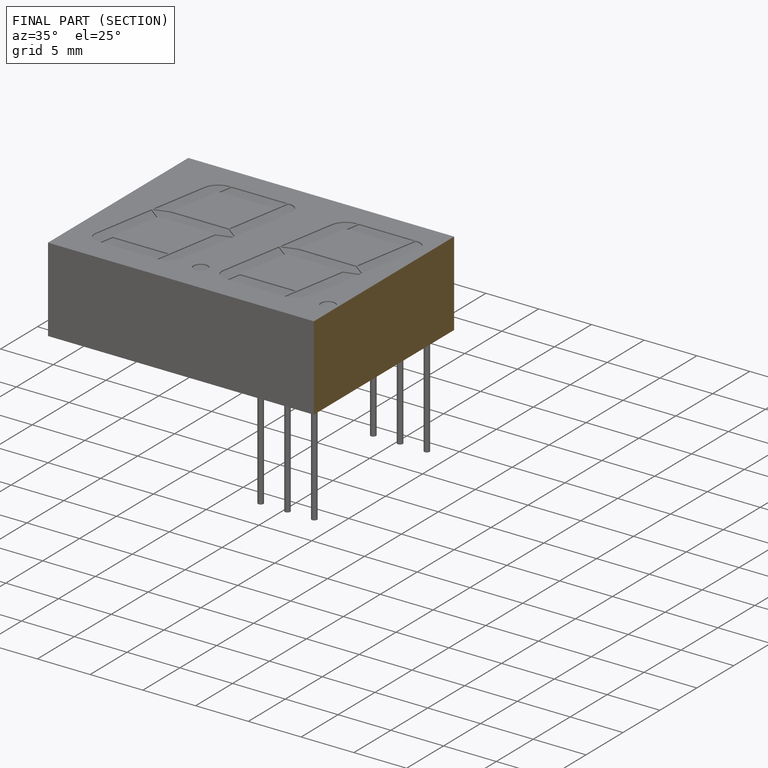
[diagram: finished part — half-section view (interior)]
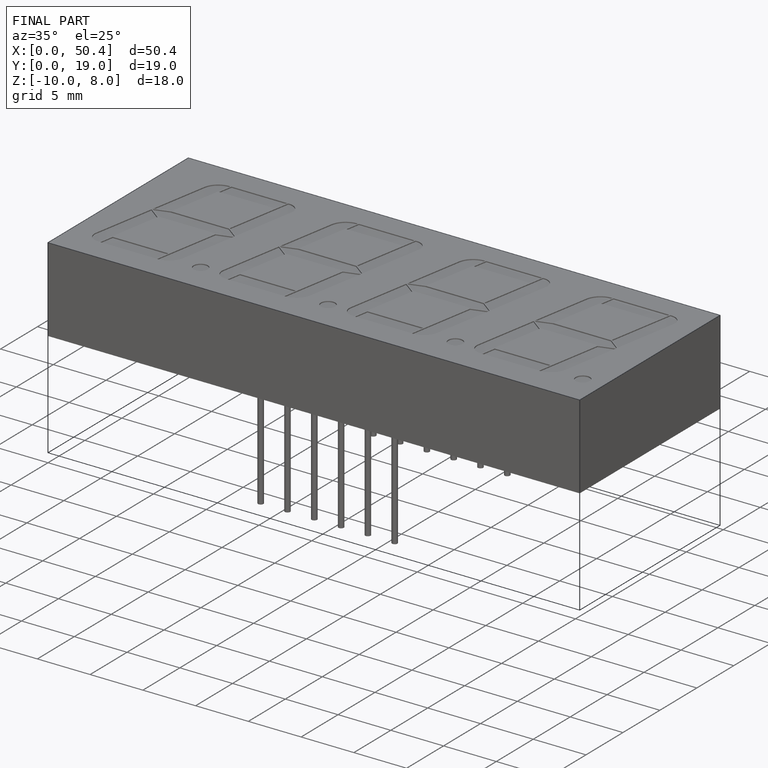
[diagram: finished part — iso view with bounding-box wireframe]
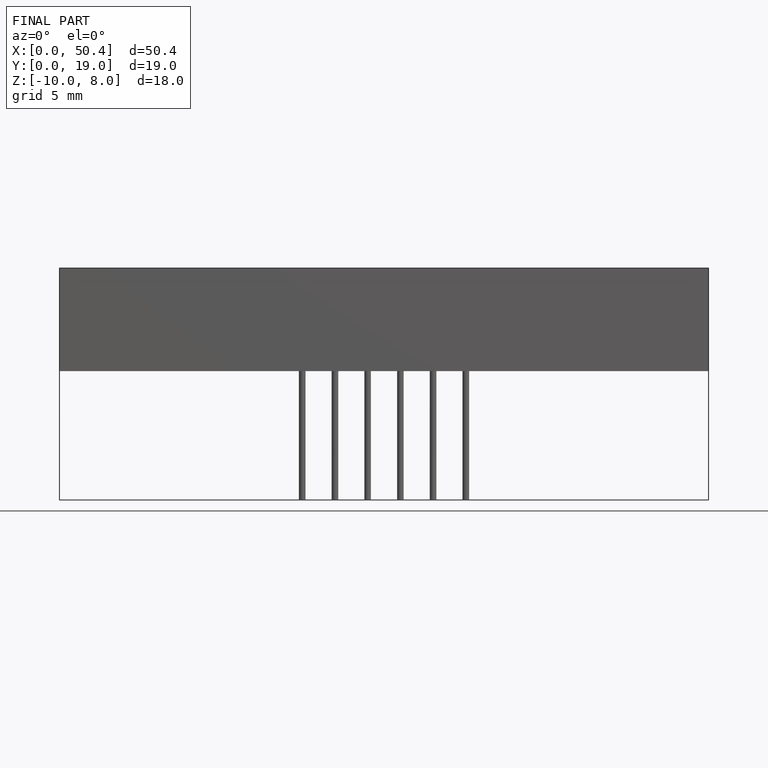
[diagram: finished part — front view with bounding-box wireframe]
